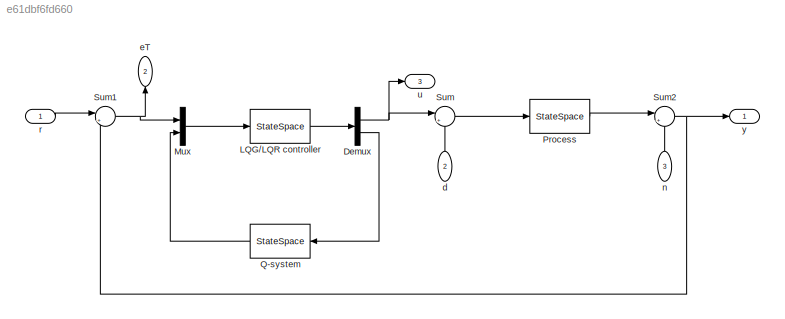
MODEL slx_e61dbf6fd660
KIND model
CONFIG AbsTol = auto
CONFIG EnableMultiTasking = off
CONFIG FixedStep = auto
CONFIG MaxStep = auto
CONFIG MinStep = auto
CONFIG RelTol = 1e-3
CONFIG SampleTimeConstraint = Unconstrained
CONFIG Solver = VariableStepAuto
CONFIG SolverName = VariableStepAuto
CONFIG StartTime = 0.0
CONFIG StopTime = 10.0
BLOCK [Demux] Demux
  DisplayOption = bar
  Outputs = 2
  Ports = [1, 2]
BLOCK [StateSpace] LQG//LQR controller
  A = A-L*C-B*K
  B = [-L,B]
  C = -K
  D = [1,1]
  InitialCondition = 0
  Ports = [1, 1]
BLOCK [Mux] Mux
  DisplayOption = bar
  Inputs = 2
  Ports = [2, 1]
BLOCK [StateSpace] Process 
  A = A
  B = B
  C = C
  D = D
  InitialCondition = 0
  Ports = [1, 1]
BLOCK [StateSpace] Q-system
  A = AQ
  B = BQ
  C = CQ
  D = DQ
  InitialCondition = 0
  Ports = [1, 1]
BLOCK [Sum] Sum
  IconShape = round
  InputSameDT = off
  Inputs = |++
  OutDataTypeStr = Inherit: Inherit via internal rule
  Ports = [2, 1]
  SaturateOnIntegerOverflow = off
BLOCK [Sum] Sum1
  IconShape = round
  InputSameDT = off
  Inputs = |+-
  OutDataTypeStr = Inherit: Inherit via internal rule
  Ports = [2, 1]
  SaturateOnIntegerOverflow = off
BLOCK [Sum] Sum2
  IconShape = round
  InputSameDT = off
  Inputs = |++
  OutDataTypeStr = Inherit: Inherit via internal rule
  Ports = [2, 1]
  SaturateOnIntegerOverflow = off
BLOCK [Inport] d
  IconDisplay = Port number
  Port = 2
BLOCK [Outport] eT
  IconDisplay = Port number
  Port = 2
BLOCK [Inport] n
  IconDisplay = Port number
  Port = 3
BLOCK [Inport] r
  IconDisplay = Port number
BLOCK [Outport] u
  IconDisplay = Port number
  Port = 3
BLOCK [Outport] y
  IconDisplay = Port number
NET Demux:1 -> Sum:1, u:1
LINE Demux:2 -> Q-system:1
LINE LQG//LQR controller:1 -> Demux:1
LINE Mux:1 -> LQG//LQR controller:1
LINE Process :1 -> Sum2:1
LINE Q-system:1 -> Mux:2
NET Sum1:1 -> Mux:1, eT:1
NET Sum2:1 -> Sum1:2, y:1
LINE Sum:1 -> Process :1
LINE d:1 -> Sum:2
LINE n:1 -> Sum2:2
LINE r:1 -> Sum1:1
note: NET lines group one-source signal fan-out (src -> all destinations, sorted); 1:1 wires keep LINE
